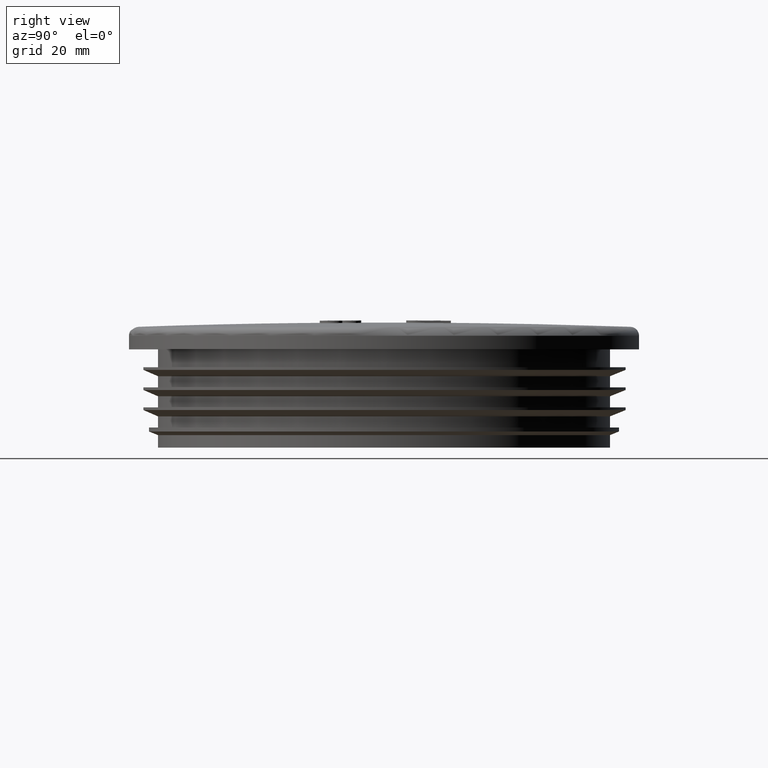
[diagram: clean part render]
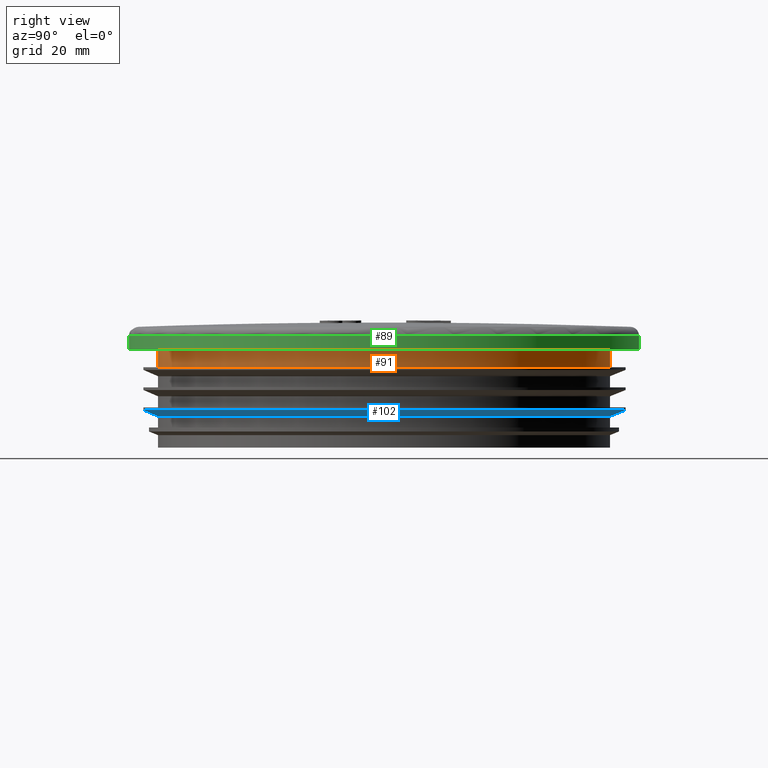
[diagram: same view with three faces highlighted in distinct colors, each labeled with its STEP entity id]
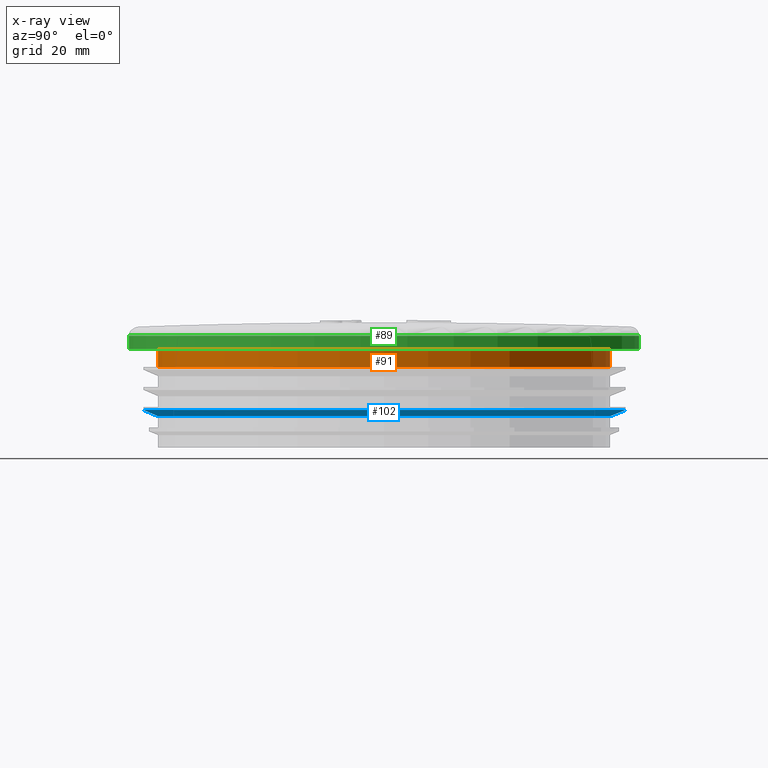
[diagram: x-ray of the same camera — body ghosted, the three highlighted faces saturated]
A machine part, right view with three faces highlighted in distinct colors.
The next image is the same camera in x-ray (body ghosted, the three faces saturated) — at least one of them is partly hidden behind the body in this view.
Their STEP definitions:

[orange] entity #91 — the highlighted cylindrical surface (bore or boss wall) has radius 50.65 mm, axis along (0, 0, 1).
#91 = ADVANCED_FACE( '', ( #225, #226 ), #227, .T. );
#225 = FACE_OUTER_BOUND( '', #569, .T. );
#226 = FACE_OUTER_BOUND( '', #570, .T. );
#227 = CYLINDRICAL_SURFACE( '', #571, 50.6500000000000 );
#569 = EDGE_LOOP( '', ( #1152 ) );
#570 = EDGE_LOOP( '', ( #1153 ) );
#571 = AXIS2_PLACEMENT_3D( '', #1154, #1155, #1156 );
#1152 = ORIENTED_EDGE( '', *, *, #1798, .F. );
#1153 = ORIENTED_EDGE( '', *, *, #1797, .T. );
#1154 = CARTESIAN_POINT( '', ( 0.000000000000000, 0.000000000000000, 22.0000000000000 ) );
#1155 = DIRECTION( '', ( 0.000000000000000, 6.12303176911189E-017, 1.00000000000000 ) );
#1156 = DIRECTION( '', ( 0.000000000000000, 1.00000000000000, -6.12303176911189E-017 ) );
#1797 = EDGE_CURVE( '', #2106, #2106, #2107, .T. );
#1798 = EDGE_CURVE( '', #2108, #2108, #2109, .T. );
#2106 = VERTEX_POINT( '', #3236 );
#2107 = CIRCLE( '', #3237, 50.6500000000000 );
#2108 = VERTEX_POINT( '', #3238 );
#2109 = CIRCLE( '', #3239, 50.6500000000000 );
#3236 = CARTESIAN_POINT( '', ( 0.000000000000000, 50.6500000000000, 22.0000000000000 ) );
#3237 = AXIS2_PLACEMENT_3D( '', #3715, #3716, #3717 );
#3238 = CARTESIAN_POINT( '', ( 0.000000000000000, 50.6500000000000, 18.0000000000000 ) );
#3239 = AXIS2_PLACEMENT_3D( '', #3718, #3719, #3720 );
#3715 = CARTESIAN_POINT( '', ( 0.000000000000000, 0.000000000000000, 22.0000000000000 ) );
#3716 = DIRECTION( '', ( 0.000000000000000, -6.12303176911189E-017, -1.00000000000000 ) );
#3717 = DIRECTION( '', ( 0.000000000000000, 1.00000000000000, -6.12303176911189E-017 ) );
#3718 = CARTESIAN_POINT( '', ( 0.000000000000000, -2.44921270764476E-016, 18.0000000000000 ) );
#3719 = DIRECTION( '', ( 0.000000000000000, -6.12303176911189E-017, -1.00000000000000 ) );
#3720 = DIRECTION( '', ( 0.000000000000000, 1.00000000000000, -6.12303176911189E-017 ) );

[blue] entity #102 — the highlighted conical surface has half-angle 68 deg.
#102 = ADVANCED_FACE( '', ( #258, #259 ), #260, .T. );
#258 = FACE_BOUND( '', #602, .T. );
#259 = FACE_OUTER_BOUND( '', #603, .T. );
#260 = CONICAL_SURFACE( '', #604, 54.1500000000000, 1.18682389135614 );
#602 = EDGE_LOOP( '', ( #1207 ) );
#603 = EDGE_LOOP( '', ( #1208 ) );
#604 = AXIS2_PLACEMENT_3D( '', #1209, #1210, #1211 );
#1207 = ORIENTED_EDGE( '', *, *, #1809, .F. );
#1208 = ORIENTED_EDGE( '', *, *, #1808, .T. );
#1209 = CARTESIAN_POINT( '', ( 0.000000000000000, -8.31869475794776E-016, 8.41409179042305 ) );
#1210 = DIRECTION( '', ( 0.000000000000000, 6.12303176911189E-017, 1.00000000000000 ) );
#1211 = DIRECTION( '', ( 0.000000000000000, -1.00000000000000, 6.12303176911189E-017 ) );
#1808 = EDGE_CURVE( '', #2128, #2128, #2129, .T. );
#1809 = EDGE_CURVE( '', #2130, #2130, #2131, .T. );
#2128 = VERTEX_POINT( '', #3258 );
#2129 = CIRCLE( '', #3259, 54.1500000000000 );
#2130 = VERTEX_POINT( '', #3260 );
#2131 = CIRCLE( '', #3261, 50.6500000000000 );
#3258 = CARTESIAN_POINT( '', ( 0.000000000000000, 54.1500000000000, 8.41409179042305 ) );
#3259 = AXIS2_PLACEMENT_3D( '', #3748, #3749, #3750 );
#3260 = CARTESIAN_POINT( '', ( 0.000000000000000, 50.6500000000000, 6.99999999999998 ) );
#3261 = AXIS2_PLACEMENT_3D( '', #3751, #3752, #3753 );
#3748 = CARTESIAN_POINT( '', ( 0.000000000000000, -8.31869475794776E-016, 8.41409179042305 ) );
#3749 = DIRECTION( '', ( 0.000000000000000, -6.12303176911189E-017, -1.00000000000000 ) );
#3750 = DIRECTION( '', ( 0.000000000000000, 1.00000000000000, -6.12303176911189E-017 ) );
#3751 = CARTESIAN_POINT( '', ( 0.000000000000000, -9.18454765366784E-016, 6.99999999999999 ) );
#3752 = DIRECTION( '', ( 0.000000000000000, -6.12303176911189E-017, -1.00000000000000 ) );
#3753 = DIRECTION( '', ( 0.000000000000000, 1.00000000000000, -6.12303176911189E-017 ) );

[green] entity #89 — the highlighted cylindrical surface (bore or boss wall) has radius 57.15 mm, axis along (0, 0, 1).
#89 = ADVANCED_FACE( '', ( #219, #220 ), #221, .T. );
#219 = FACE_OUTER_BOUND( '', #563, .T. );
#220 = FACE_OUTER_BOUND( '', #564, .T. );
#221 = CYLINDRICAL_SURFACE( '', #565, 57.1500000000000 );
#563 = EDGE_LOOP( '', ( #1142 ) );
#564 = EDGE_LOOP( '', ( #1143 ) );
#565 = AXIS2_PLACEMENT_3D( '', #1144, #1145, #1146 );
#1142 = ORIENTED_EDGE( '', *, *, #1796, .F. );
#1143 = ORIENTED_EDGE( '', *, *, #1795, .T. );
#1144 = CARTESIAN_POINT( '', ( 0.000000000000000, 0.000000000000000, 22.0000000000000 ) );
#1145 = DIRECTION( '', ( 0.000000000000000, 6.12303176911189E-017, 1.00000000000000 ) );
#1146 = DIRECTION( '', ( 0.000000000000000, 1.00000000000000, -6.12303176911189E-017 ) );
#1795 = EDGE_CURVE( '', #2102, #2102, #2103, .T. );
#1796 = EDGE_CURVE( '', #2104, #2104, #2105, .T. );
#2102 = VERTEX_POINT( '', #3232 );
#2103 = CIRCLE( '', #3233, 57.1500000000000 );
#2104 = VERTEX_POINT( '', #3234 );
#2105 = CIRCLE( '', #3235, 57.1500000000000 );
#3232 = CARTESIAN_POINT( '', ( 0.000000000000000, 57.1500000000000, 25.0705543587493 ) );
#3233 = AXIS2_PLACEMENT_3D( '', #3709, #3710, #3711 );
#3234 = CARTESIAN_POINT( '', ( 0.000000000000000, 57.1500000000000, 22.0000000000000 ) );
#3235 = AXIS2_PLACEMENT_3D( '', #3712, #3713, #3714 );
#3709 = CARTESIAN_POINT( '', ( 0.000000000000000, 1.88011018874067E-016, 25.0705543587493 ) );
#3710 = DIRECTION( '', ( 0.000000000000000, -6.12303176911189E-017, -1.00000000000000 ) );
#3711 = DIRECTION( '', ( 0.000000000000000, 1.00000000000000, -6.12303176911189E-017 ) );
#3712 = CARTESIAN_POINT( '', ( 0.000000000000000, 1.85880921695528E-031, 22.0000000000000 ) );
#3713 = DIRECTION( '', ( 0.000000000000000, -6.12303176911189E-017, -1.00000000000000 ) );
#3714 = DIRECTION( '', ( 0.000000000000000, 1.00000000000000, -6.12303176911189E-017 ) );